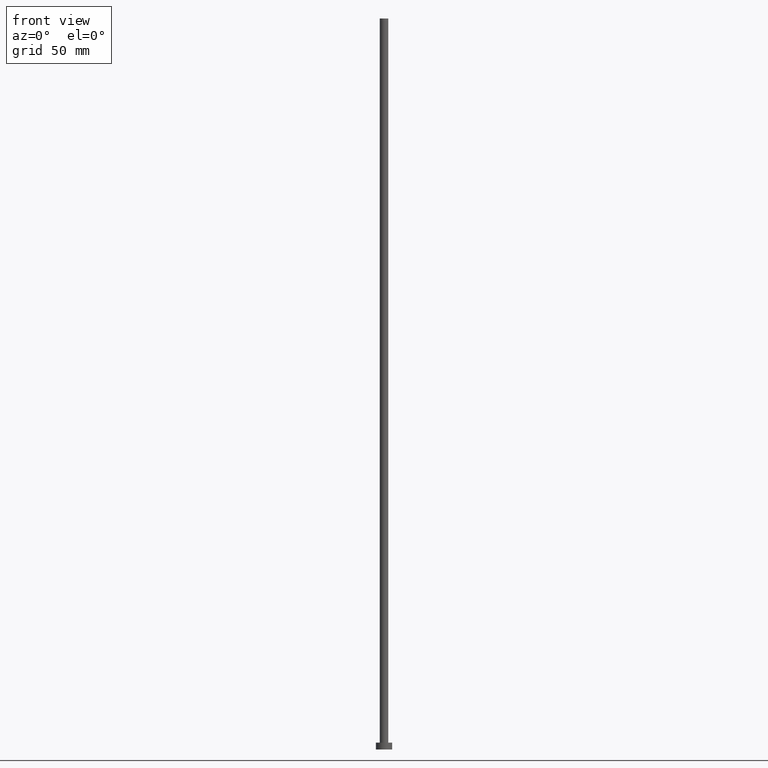
[diagram: clean part render]
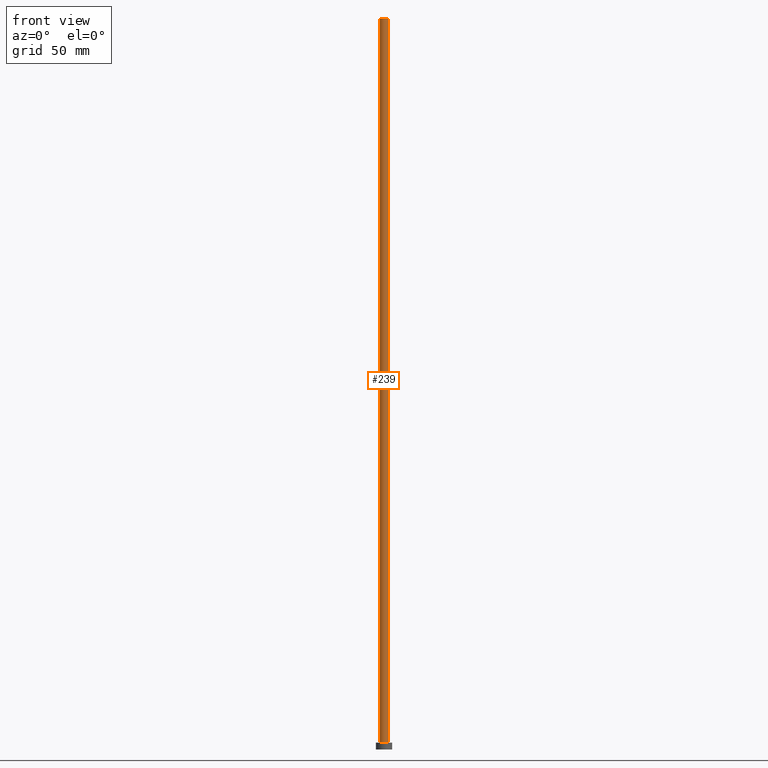
[diagram: same view with one face highlighted and labeled with its STEP entity id]
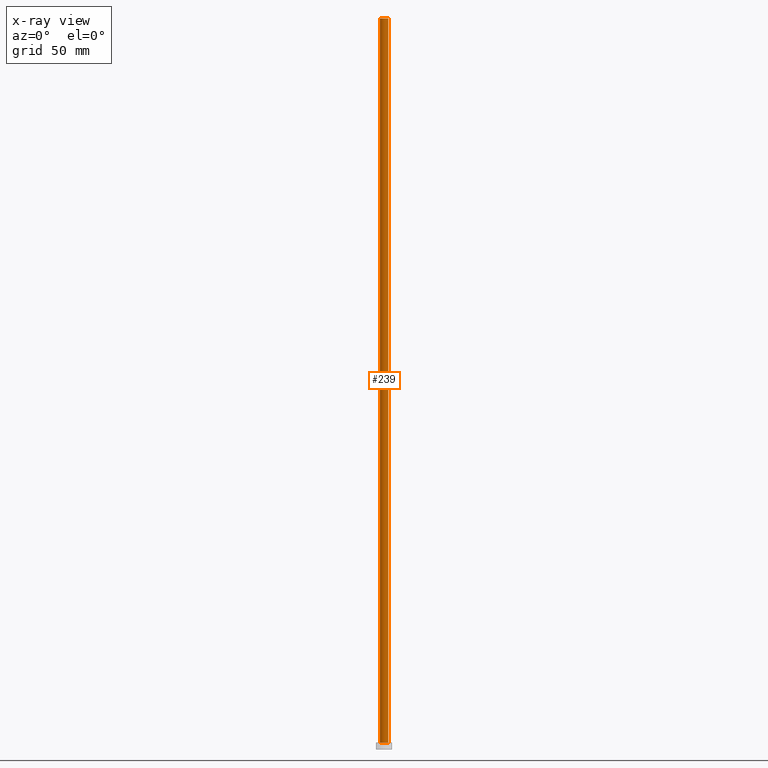
[diagram: x-ray of the same camera — body ghosted, the highlighted face saturated]
A machine part, front view. The second image highlights one B-rep face of the part: STEP entity #239.
The next image is the same camera in x-ray: the body ghosted, the highlighted face saturated — about 0% of this face is hidden behind the body in this view.
In plain terms, the highlighted cylindrical surface (edge-blend (fillet) strip) has radius 1.85 mm, axis along (-0, -0, -1).
Its self-contained STEP definition (entity closure, byte-faithful):
#2 = DIRECTION ( 'NONE',  ( -0.000000000000000000, -0.000000000000000000, -1.000000000000000000 ) ) ;
#6 = DIRECTION ( 'NONE',  ( -0.000000000000000000, -0.000000000000000000, -1.000000000000000000 ) ) ;
#10 = VECTOR ( 'NONE', #92, 1000.000000000000000 ) ;
#16 = VERTEX_POINT ( 'NONE', #95 ) ;
#22 = CARTESIAN_POINT ( 'NONE',  ( 1.850000000000000089, 2.265596578422603100E-16, 315.0000000000000000 ) ) ;
#28 = ORIENTED_EDGE ( 'NONE', *, *, #67, .F. ) ;
#37 = VERTEX_POINT ( 'NONE', #136 ) ;
#40 = CARTESIAN_POINT ( 'NONE',  ( -1.850000000000000089, 0.000000000000000000, 3.000000000000000000 ) ) ;
#55 = ORIENTED_EDGE ( 'NONE', *, *, #145, .T. ) ;
#60 = DIRECTION ( 'NONE',  ( 1.000000000000000000, 0.000000000000000000, 0.000000000000000000 ) ) ;
#64 = EDGE_LOOP ( 'NONE', ( #219, #28, #222, #55 ) ) ;
#67 = EDGE_CURVE ( 'NONE', #37, #16, #75, .T. ) ;
#75 = CIRCLE ( 'NONE', #187, 1.850000000000000089 ) ;
#77 = LINE ( 'NONE', #22, #185 ) ;
#84 = DIRECTION ( 'NONE',  ( -1.000000000000000000, 0.000000000000000000, 0.000000000000000000 ) ) ;
#86 = EDGE_CURVE ( 'NONE', #37, #137, #120, .T. ) ;
#90 = DIRECTION ( 'NONE',  ( 0.000000000000000000, 0.000000000000000000, 1.000000000000000000 ) ) ;
#92 = DIRECTION ( 'NONE',  ( -0.000000000000000000, -0.000000000000000000, -1.000000000000000000 ) ) ;
#95 = CARTESIAN_POINT ( 'NONE',  ( 1.850000000000000089, 2.265596578422603100E-16, 315.0000000000000000 ) ) ;
#115 = CARTESIAN_POINT ( 'NONE',  ( -1.850000000000000089, 0.000000000000000000, 315.0000000000000000 ) ) ;
#120 = LINE ( 'NONE', #115, #10 ) ;
#134 = CARTESIAN_POINT ( 'NONE',  ( 0.000000000000000000, 0.000000000000000000, 3.000000000000000000 ) ) ;
#136 = CARTESIAN_POINT ( 'NONE',  ( -1.850000000000000089, 0.000000000000000000, 315.0000000000000000 ) ) ;
#137 = VERTEX_POINT ( 'NONE', #40 ) ;
#140 = CYLINDRICAL_SURFACE ( 'NONE', #158, 1.850000000000000089 ) ;
#142 = EDGE_CURVE ( 'NONE', #16, #240, #77, .T. ) ;
#145 = EDGE_CURVE ( 'NONE', #137, #240, #165, .T. ) ;
#158 = AXIS2_PLACEMENT_3D ( 'NONE', #183, #6, #84 ) ;
#165 = CIRCLE ( 'NONE', #214, 1.850000000000000089 ) ;
#183 = CARTESIAN_POINT ( 'NONE',  ( 0.000000000000000000, 0.000000000000000000, 315.0000000000000000 ) ) ;
#185 = VECTOR ( 'NONE', #2, 1000.000000000000000 ) ;
#187 = AXIS2_PLACEMENT_3D ( 'NONE', #231, #237, #60 ) ;
#195 = CARTESIAN_POINT ( 'NONE',  ( 1.850000000000000089, 2.265596578422603100E-16, 3.000000000000000000 ) ) ;
#201 = DIRECTION ( 'NONE',  ( 1.000000000000000000, 0.000000000000000000, 0.000000000000000000 ) ) ;
#214 = AXIS2_PLACEMENT_3D ( 'NONE', #134, #90, #201 ) ;
#219 = ORIENTED_EDGE ( 'NONE', *, *, #142, .F. ) ;
#222 = ORIENTED_EDGE ( 'NONE', *, *, #86, .T. ) ;
#231 = CARTESIAN_POINT ( 'NONE',  ( 0.000000000000000000, 0.000000000000000000, 315.0000000000000000 ) ) ;
#237 = DIRECTION ( 'NONE',  ( 0.000000000000000000, 0.000000000000000000, 1.000000000000000000 ) ) ;
#239 = ADVANCED_FACE ( 'NONE', ( #245 ), #140, .T. ) ;
#240 = VERTEX_POINT ( 'NONE', #195 ) ;
#245 = FACE_OUTER_BOUND ( 'NONE', #64, .T. ) ;